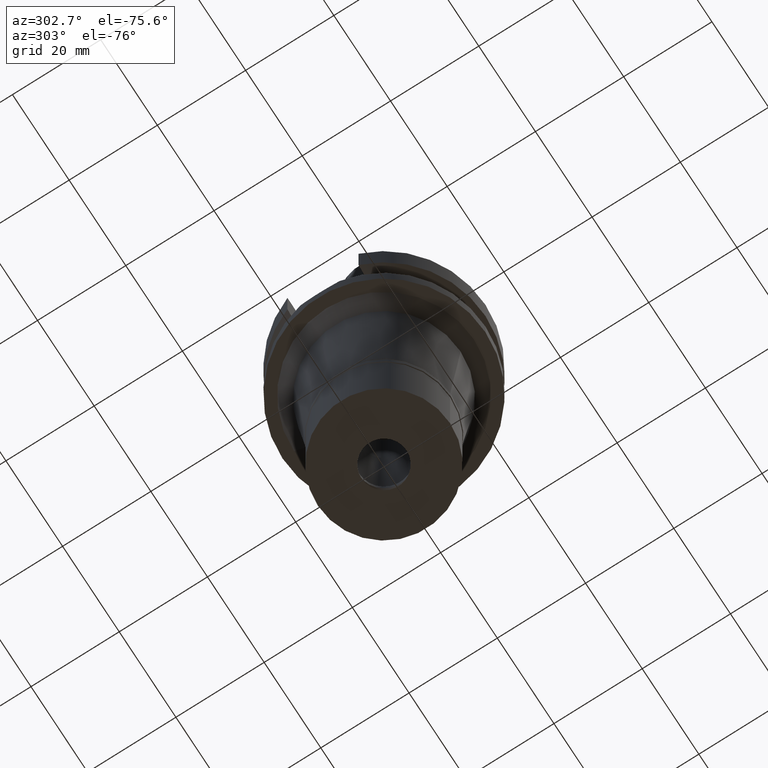
[diagram: clean part render]
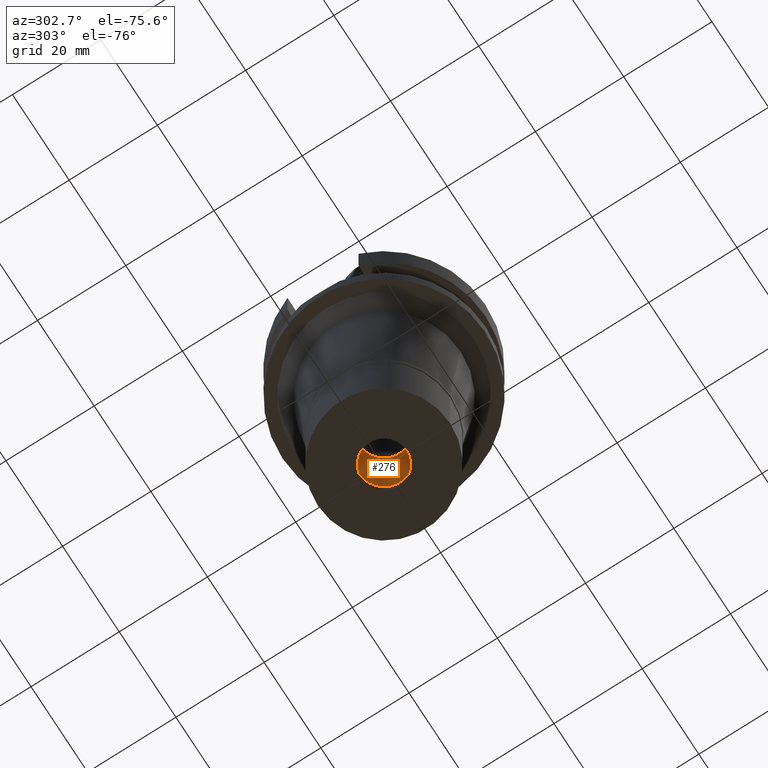
[diagram: same view with one face highlighted and labeled with its STEP entity id]
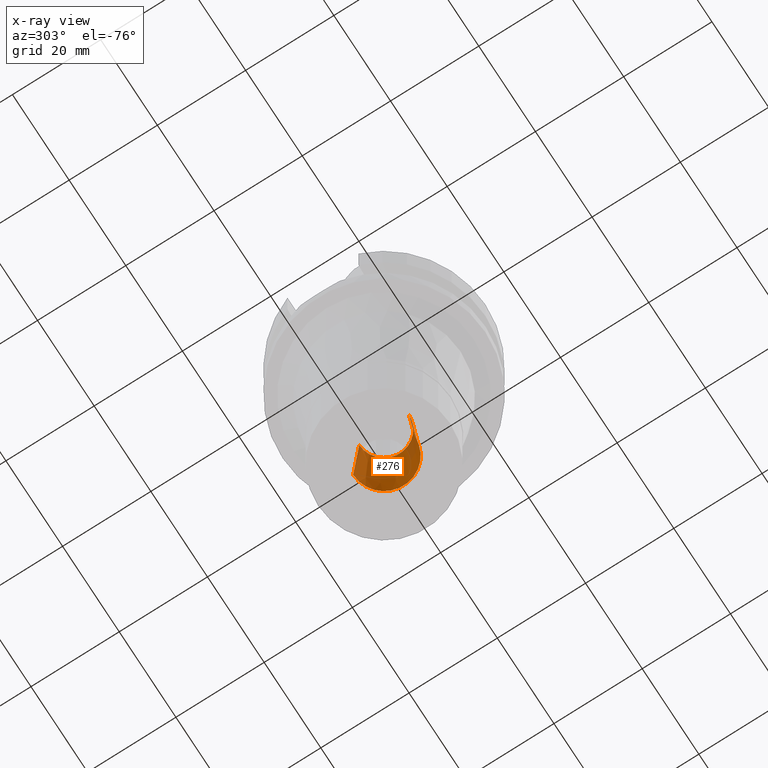
[diagram: x-ray of the same camera — body ghosted, the highlighted face saturated]
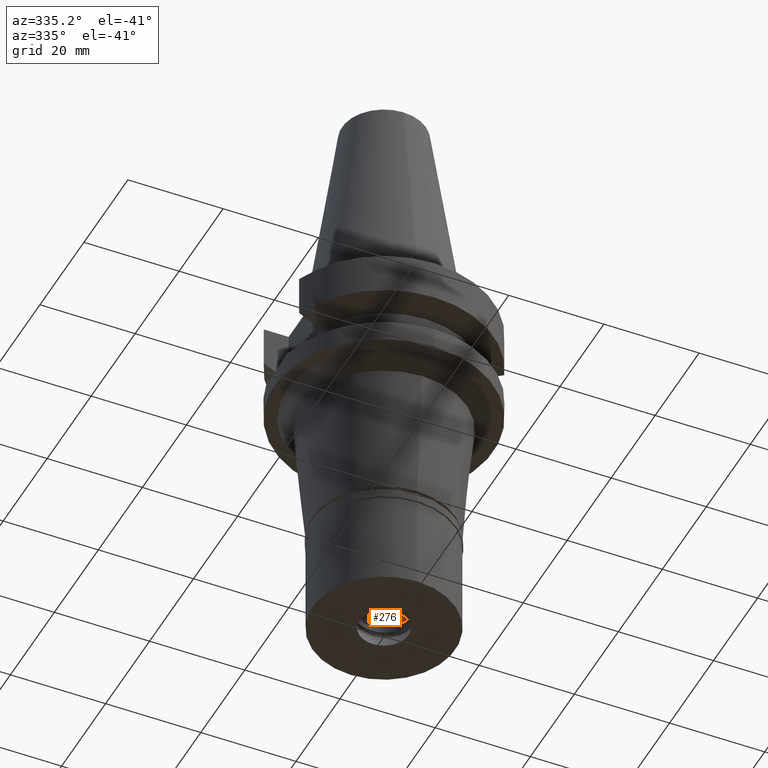
[diagram: same view with one face highlighted and labeled with its STEP entity id]
A machine part, auxiliary view. The second image highlights one B-rep face of the part: STEP entity #276.
The next image is the same camera in x-ray: the body ghosted, the highlighted face saturated — about 9% of this face is hidden behind the body in this view.
A second angle (auxiliary view) of the same face is appended — the face is thin or edge-on in the first view.
In plain terms, the highlighted conical surface has half-angle 4 deg.
Its self-contained STEP definition (entity closure, byte-faithful):
#4 = CARTESIAN_POINT ( 'NONE',  ( 0.0000000000000000000, 0.0000000000000000000, -58.28953362029999852 ) ) ;
#8 = VECTOR ( 'NONE', #420, 1000.000000000000114 ) ;
#180 = EDGE_CURVE ( 'NONE', #2946, #2195, #2388, .T. ) ;
#276 = ADVANCED_FACE ( 'NONE', ( #1196 ), #282, .F. ) ;
#282 = CONICAL_SURFACE ( 'NONE', #1638, 6.299999999999999822, 0.06981317007975955391 ) ;
#420 = DIRECTION ( 'NONE',  ( 0.0000000000000000000, 0.06975647374412166646, 0.9975640502598245307 ) ) ;
#454 = CIRCLE ( 'NONE', #762, 7.000000000000000000 ) ;
#551 = ORIENTED_EDGE ( 'NONE', *, *, #2331, .F. ) ;
#552 = CARTESIAN_POINT ( 'NONE',  ( 0.0000000000000000000, 7.000000000000000000, -68.29999999999999716 ) ) ;
#747 = CARTESIAN_POINT ( 'NONE',  ( 0.0000000000000000000, 5.599999999999999645, -48.27906724059999988 ) ) ;
#756 = DIRECTION ( 'NONE',  ( 0.0000000000000000000, -1.000000000000000000, 0.0000000000000000000 ) ) ;
#762 = AXIS2_PLACEMENT_3D ( 'NONE', #1214, #1698, #2181 ) ;
#984 = DIRECTION ( 'NONE',  ( 0.0000000000000000000, 0.0000000000000000000, -1.000000000000000000 ) ) ;
#1098 = VECTOR ( 'NONE', #1832, 1000.000000000000114 ) ;
#1134 = AXIS2_PLACEMENT_3D ( 'NONE', #2786, #1617, #3002 ) ;
#1196 = FACE_OUTER_BOUND ( 'NONE', #1377, .T. ) ;
#1214 = CARTESIAN_POINT ( 'NONE',  ( 0.0000000000000000000, 0.0000000000000000000, -68.29999999999999716 ) ) ;
#1316 = ORIENTED_EDGE ( 'NONE', *, *, #2255, .T. ) ;
#1367 = LINE ( 'NONE', #2270, #1098 ) ;
#1377 = EDGE_LOOP ( 'NONE', ( #1316, #2502, #2094, #551 ) ) ;
#1459 = CARTESIAN_POINT ( 'NONE',  ( 0.0000000000000000000, -5.599999999999999645, -48.27906724059999988 ) ) ;
#1536 = VERTEX_POINT ( 'NONE', #1546 ) ;
#1546 = CARTESIAN_POINT ( 'NONE',  ( 0.0000000000000000000, -7.000000000000000000, -68.29999999999999716 ) ) ;
#1610 = CARTESIAN_POINT ( 'NONE',  ( 0.0000000000000000000, -7.000000000000000000, -68.29999999999999716 ) ) ;
#1617 = DIRECTION ( 'NONE',  ( 0.0000000000000000000, 0.0000000000000000000, -1.000000000000000000 ) ) ;
#1629 = VERTEX_POINT ( 'NONE', #552 ) ;
#1638 = AXIS2_PLACEMENT_3D ( 'NONE', #4, #984, #756 ) ;
#1698 = DIRECTION ( 'NONE',  ( 0.0000000000000000000, 0.0000000000000000000, -1.000000000000000000 ) ) ;
#1832 = DIRECTION ( 'NONE',  ( 0.0000000000000000000, -0.06975647374412166646, 0.9975640502598245307 ) ) ;
#2094 = ORIENTED_EDGE ( 'NONE', *, *, #180, .F. ) ;
#2181 = DIRECTION ( 'NONE',  ( 0.0000000000000000000, 1.000000000000000000, 0.0000000000000000000 ) ) ;
#2195 = VERTEX_POINT ( 'NONE', #1459 ) ;
#2255 = EDGE_CURVE ( 'NONE', #1629, #1536, #454, .T. ) ;
#2270 = CARTESIAN_POINT ( 'NONE',  ( 0.0000000000000000000, 7.000000000000000000, -68.29999999999999716 ) ) ;
#2331 = EDGE_CURVE ( 'NONE', #1629, #2946, #1367, .T. ) ;
#2364 = EDGE_CURVE ( 'NONE', #1536, #2195, #2580, .T. ) ;
#2388 = CIRCLE ( 'NONE', #1134, 5.599999999999999645 ) ;
#2502 = ORIENTED_EDGE ( 'NONE', *, *, #2364, .T. ) ;
#2580 = LINE ( 'NONE', #1610, #8 ) ;
#2786 = CARTESIAN_POINT ( 'NONE',  ( 0.0000000000000000000, 0.0000000000000000000, -48.27906724059999988 ) ) ;
#2946 = VERTEX_POINT ( 'NONE', #747 ) ;
#3002 = DIRECTION ( 'NONE',  ( 0.0000000000000000000, 1.000000000000000000, 0.0000000000000000000 ) ) ;